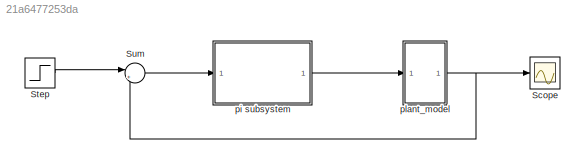
MODEL slx_21a6477253da
KIND model
CONFIG AbsTol = auto
CONFIG EnableMultiTasking = off
CONFIG FixedStep = auto
CONFIG MaxStep = auto
CONFIG MinStep = auto
CONFIG RelTol = 1e-3
CONFIG SampleTimeConstraint = Unconstrained
CONFIG SolverName = VariableStepAuto
CONFIG StartTime = 0.0
CONFIG StopTime = 10
BLOCK [Scope] Scope
  Floating = off
  NumInputPorts = 1
  Ports = [1]
  ScopeSpecificationString = Simulink.scopes.TimeScopeBlockCfg('CurrentConfiguration', extmgr.ConfigurationSet(extmgr.Configuration('Core','General UI',true),extmgr.Configuration('Core','Source UI',true),extmgr.Configuration('Sources','WiredSimulink',true),extmgr.Configuration('Visuals','Time Domain',true,'SerializedDisplays',{struct('MinYLimReal','-0.12496','MaxYLimReal','1.12462','YLabelReal','','MinYLimMag','0.00000','MaxY...<+1358ch>
BLOCK [Step] Step
  SampleTime = 0
  Time = 0
BLOCK [Sum] Sum
  Inputs = |+-
  Ports = [2, 1]
BLOCK [ModelReference] pi subsystem
  ModelNameDialog = pi_sub
  ModelReferenceVersion = 1.3
  Ports = [1, 1]
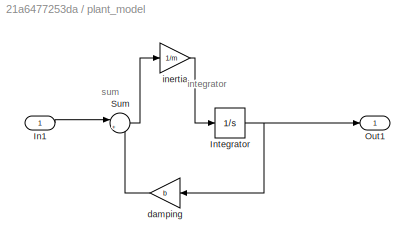
BLOCK [SubSystem] plant_model
  Ports = [1, 1]
  RequestExecContextInheritance = off
BLOCK [Inport] plant_model/In1
BLOCK [Integrator] plant_model/Integrator
  Ports = [1, 1]
BLOCK [Outport] plant_model/Out1
BLOCK [Sum] plant_model/Sum
  Inputs = |+-
  Ports = [2, 1]
BLOCK [Gain] plant_model/damping
  Gain = b
  NameLocation = top
BLOCK [Gain] plant_model/inertia
  Gain = 1/m
ANNOTATION plant_model: integrator
ANNOTATION plant_model: sum
LINE Step:1 -> Sum:1
LINE Sum:1 -> pi subsystem:1
LINE pi subsystem:1 -> plant_model:1
LINE plant_model/In1:1 -> plant_model/Sum:1
NET plant_model/Integrator:1 -> plant_model/Out1:1, plant_model/damping:1
LINE plant_model/Sum:1 -> plant_model/inertia:1
LINE plant_model/damping:1 -> plant_model/Sum:2
LINE plant_model/inertia:1 -> plant_model/Integrator:1
NET plant_model:1 -> Scope:1, Sum:2
note: NET lines group one-source signal fan-out (src -> all destinations, sorted); 1:1 wires keep LINE
